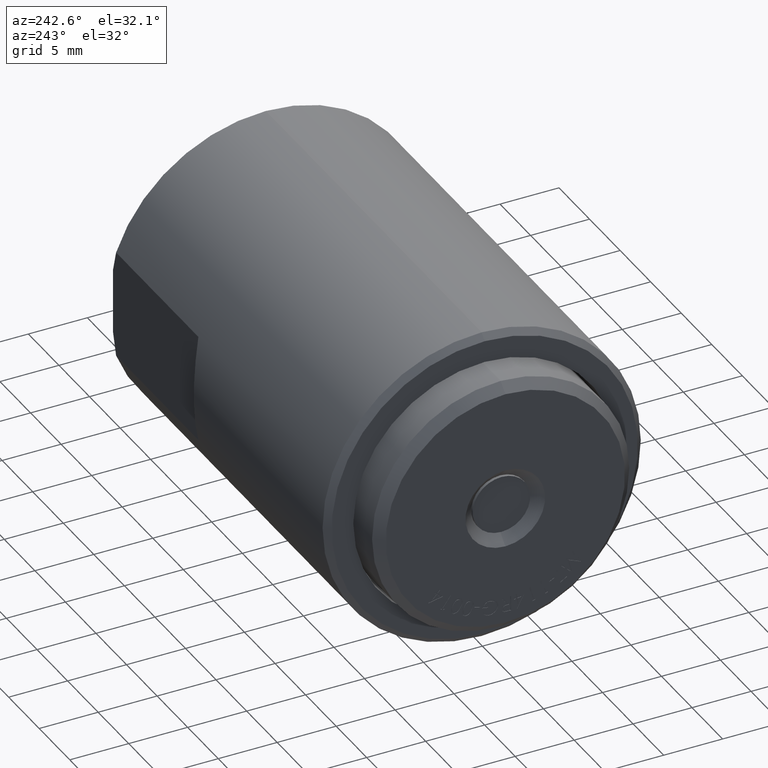
[diagram: clean part render]
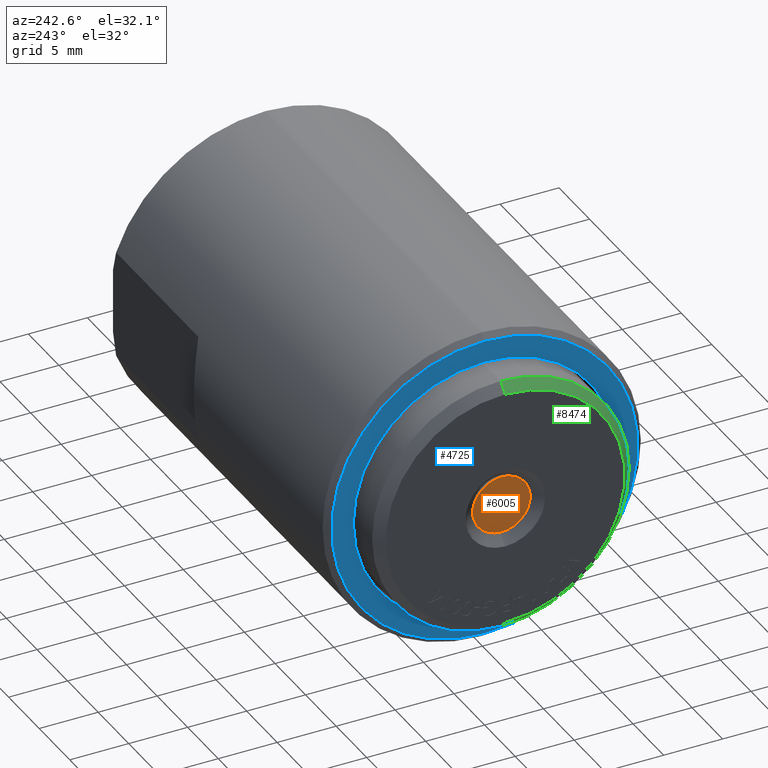
[diagram: same view with three faces highlighted in distinct colors, each labeled with its STEP entity id]
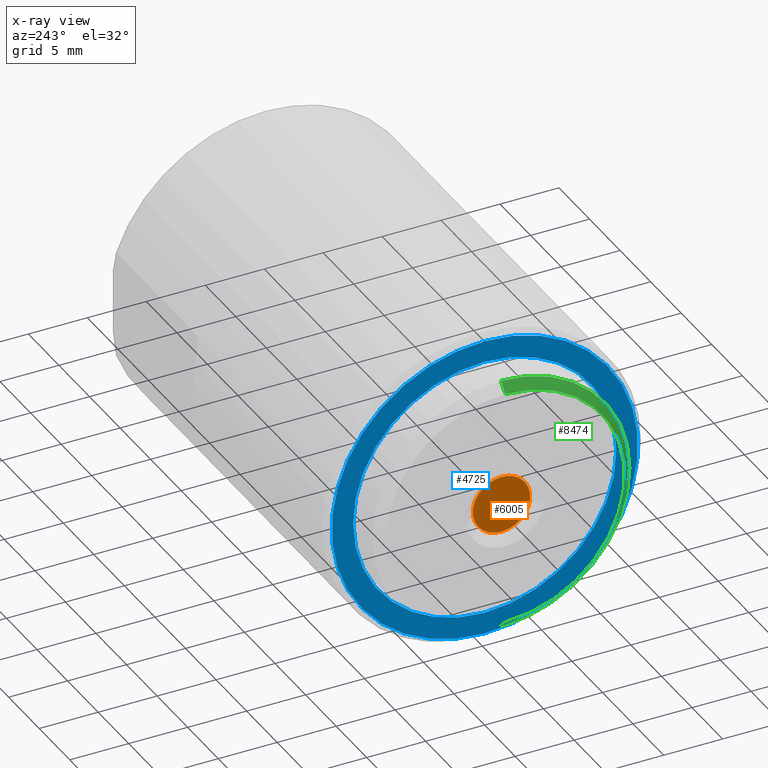
[diagram: x-ray of the same camera — body ghosted, the three highlighted faces saturated]
A machine part, auxiliary view with three faces highlighted in distinct colors.
The next image is the same camera in x-ray (body ghosted, the three faces saturated) — at least one of them is partly hidden behind the body in this view.
Their STEP definitions:

[orange] entity #6005 — the highlighted planar face has unit normal (1, 0, 0).
#8 = AXIS2_PLACEMENT_3D ( 'NONE', #4172, #1676, #10311 ) ;
#346 = CARTESIAN_POINT ( 'NONE',  ( -0.3190000000000000058, 0.09608246407405780787, 0.0000000000000000000 ) ) ;
#683 = EDGE_CURVE ( 'NONE', #9763, #10333, #6779, .T. ) ;
#775 = AXIS2_PLACEMENT_3D ( 'NONE', #346, #1334, #9269 ) ;
#1334 = DIRECTION ( 'NONE',  ( 1.000000000000000000, 0.0000000000000000000, 0.0000000000000000000 ) ) ;
#1440 = PLANE ( 'NONE',  #775 ) ;
#1676 = DIRECTION ( 'NONE',  ( -1.000000000000000000, -0.0000000000000000000, -0.0000000000000000000 ) ) ;
#1729 = ORIENTED_EDGE ( 'NONE', *, *, #683, .T. ) ;
#2410 = CARTESIAN_POINT ( 'NONE',  ( -0.3190000000000000058, 1.176670820824854605E-17, -0.09608246407405780787 ) ) ;
#4047 = FACE_OUTER_BOUND ( 'NONE', #6180, .T. ) ;
#4172 = CARTESIAN_POINT ( 'NONE',  ( -0.3190000000000000058, 0.0000000000000000000, 0.0000000000000000000 ) ) ;
#4819 = CIRCLE ( 'NONE', #8, 0.09608246407405780787 ) ;
#6005 = ADVANCED_FACE ( 'NONE', ( #4047 ), #1440, .F. ) ;
#6180 = EDGE_LOOP ( 'NONE', ( #8209, #1729 ) ) ;
#6779 = CIRCLE ( 'NONE', #7522, 0.09608246407405780787 ) ;
#7522 = AXIS2_PLACEMENT_3D ( 'NONE', #9471, #9352, #10271 ) ;
#8209 = ORIENTED_EDGE ( 'NONE', *, *, #8963, .T. ) ;
#8963 = EDGE_CURVE ( 'NONE', #10333, #9763, #4819, .T. ) ;
#9269 = DIRECTION ( 'NONE',  ( 0.0000000000000000000, 0.0000000000000000000, -1.000000000000000000 ) ) ;
#9352 = DIRECTION ( 'NONE',  ( -1.000000000000000000, -0.0000000000000000000, -0.0000000000000000000 ) ) ;
#9471 = CARTESIAN_POINT ( 'NONE',  ( -0.3190000000000000058, 0.0000000000000000000, 0.0000000000000000000 ) ) ;
#9763 = VERTEX_POINT ( 'NONE', #2410 ) ;
#10014 = CARTESIAN_POINT ( 'NONE',  ( -0.3190000000000000058, 0.0000000000000000000, 0.09608246407405780787 ) ) ;
#10271 = DIRECTION ( 'NONE',  ( 0.0000000000000000000, 0.0000000000000000000, 1.000000000000000000 ) ) ;
#10311 = DIRECTION ( 'NONE',  ( 0.0000000000000000000, 0.0000000000000000000, 1.000000000000000000 ) ) ;
#10333 = VERTEX_POINT ( 'NONE', #10014 ) ;

[blue] entity #4725 — the highlighted planar face has unit normal (-1, 0, -0).
#174 = CARTESIAN_POINT ( 'NONE',  ( -0.2114999999999999936, 0.0000000000000000000, 0.0000000000000000000 ) ) ;
#230 = PLANE ( 'NONE',  #7858 ) ;
#300 = AXIS2_PLACEMENT_3D ( 'NONE', #6241, #9767, #1823 ) ;
#358 = DIRECTION ( 'NONE',  ( 0.0000000000000000000, 0.0000000000000000000, 1.000000000000000000 ) ) ;
#362 = CARTESIAN_POINT ( 'NONE',  ( -0.2114999999999999936, 6.384083763955153047E-17, 0.5112999999999999767 ) ) ;
#787 = VERTEX_POINT ( 'NONE', #7496 ) ;
#859 = CIRCLE ( 'NONE', #1233, 0.5112999999999999767 ) ;
#935 = EDGE_CURVE ( 'NONE', #9203, #2222, #8264, .T. ) ;
#969 = EDGE_LOOP ( 'NONE', ( #2601, #8021 ) ) ;
#1040 = DIRECTION ( 'NONE',  ( -0.0000000000000000000, 0.0000000000000000000, 1.000000000000000000 ) ) ;
#1233 = AXIS2_PLACEMENT_3D ( 'NONE', #8673, #8836, #4424 ) ;
#1689 = CIRCLE ( 'NONE', #3536, 0.4389999999999998903 ) ;
#1823 = DIRECTION ( 'NONE',  ( 0.0000000000000000000, 0.0000000000000000000, 1.000000000000000000 ) ) ;
#1963 = FACE_OUTER_BOUND ( 'NONE', #969, .T. ) ;
#2207 = CARTESIAN_POINT ( 'NONE',  ( -0.2114999999999999936, 0.0000000000000000000, 0.0000000000000000000 ) ) ;
#2222 = VERTEX_POINT ( 'NONE', #7912 ) ;
#2233 = EDGE_CURVE ( 'NONE', #9974, #787, #859, .T. ) ;
#2247 = CARTESIAN_POINT ( 'NONE',  ( -0.2114999999999999936, 5.376199448256879768E-17, -0.4389999999999998903 ) ) ;
#2601 = ORIENTED_EDGE ( 'NONE', *, *, #4568, .T. ) ;
#3080 = DIRECTION ( 'NONE',  ( -1.000000000000000000, -0.0000000000000000000, -0.0000000000000000000 ) ) ;
#3275 = ORIENTED_EDGE ( 'NONE', *, *, #935, .F. ) ;
#3536 = AXIS2_PLACEMENT_3D ( 'NONE', #2207, #4120, #358 ) ;
#4120 = DIRECTION ( 'NONE',  ( -1.000000000000000000, -0.0000000000000000000, -0.0000000000000000000 ) ) ;
#4424 = DIRECTION ( 'NONE',  ( 0.0000000000000000000, 0.0000000000000000000, 1.000000000000000000 ) ) ;
#4546 = ORIENTED_EDGE ( 'NONE', *, *, #5566, .F. ) ;
#4568 = EDGE_CURVE ( 'NONE', #787, #9974, #6383, .T. ) ;
#4725 = ADVANCED_FACE ( 'NONE', ( #1963, #6206 ), #230, .T. ) ;
#5566 = EDGE_CURVE ( 'NONE', #2222, #9203, #1689, .T. ) ;
#6069 = EDGE_LOOP ( 'NONE', ( #4546, #3275 ) ) ;
#6206 = FACE_BOUND ( 'NONE', #6069, .T. ) ;
#6241 = CARTESIAN_POINT ( 'NONE',  ( -0.2114999999999999936, 0.0000000000000000000, 0.0000000000000000000 ) ) ;
#6383 = CIRCLE ( 'NONE', #6563, 0.5112999999999999767 ) ;
#6435 = DIRECTION ( 'NONE',  ( -1.000000000000000000, 0.0000000000000000000, -0.0000000000000000000 ) ) ;
#6563 = AXIS2_PLACEMENT_3D ( 'NONE', #7543, #3080, #7369 ) ;
#7369 = DIRECTION ( 'NONE',  ( 0.0000000000000000000, 0.0000000000000000000, 1.000000000000000000 ) ) ;
#7496 = CARTESIAN_POINT ( 'NONE',  ( -0.2114999999999999936, 0.0000000000000000000, -0.5112999999999999767 ) ) ;
#7543 = CARTESIAN_POINT ( 'NONE',  ( -0.2114999999999999936, 0.0000000000000000000, 0.0000000000000000000 ) ) ;
#7858 = AXIS2_PLACEMENT_3D ( 'NONE', #174, #6435, #1040 ) ;
#7912 = CARTESIAN_POINT ( 'NONE',  ( -0.2114999999999999936, 0.0000000000000000000, 0.4389999999999998903 ) ) ;
#8021 = ORIENTED_EDGE ( 'NONE', *, *, #2233, .T. ) ;
#8264 = CIRCLE ( 'NONE', #300, 0.4389999999999998903 ) ;
#8673 = CARTESIAN_POINT ( 'NONE',  ( -0.2114999999999999936, 0.0000000000000000000, 0.0000000000000000000 ) ) ;
#8836 = DIRECTION ( 'NONE',  ( -1.000000000000000000, -0.0000000000000000000, -0.0000000000000000000 ) ) ;
#9203 = VERTEX_POINT ( 'NONE', #2247 ) ;
#9767 = DIRECTION ( 'NONE',  ( -1.000000000000000000, -0.0000000000000000000, -0.0000000000000000000 ) ) ;
#9974 = VERTEX_POINT ( 'NONE', #362 ) ;

[green] entity #8474 — the highlighted conical surface has half-angle 45 deg.
#33 = ORIENTED_EDGE ( 'NONE', *, *, #1097, .T. ) ;
#225 = VECTOR ( 'NONE', #1348, 39.37007874015748143 ) ;
#227 = VERTEX_POINT ( 'NONE', #5548 ) ;
#365 = CONICAL_SURFACE ( 'NONE', #546, 0.4294999999999999374, 0.7853981633974471688 ) ;
#546 = AXIS2_PLACEMENT_3D ( 'NONE', #6410, #7334, #4939 ) ;
#980 = DIRECTION ( 'NONE',  ( -1.000000000000000000, -0.0000000000000000000, -0.0000000000000000000 ) ) ;
#1097 = EDGE_CURVE ( 'NONE', #9172, #11244, #1363, .T. ) ;
#1303 = ORIENTED_EDGE ( 'NONE', *, *, #5086, .T. ) ;
#1315 = VERTEX_POINT ( 'NONE', #11133 ) ;
#1348 = DIRECTION ( 'NONE',  ( 0.7071067811865483499, 8.659560562354922997E-17, 0.7071067811865466846 ) ) ;
#1363 = LINE ( 'NONE', #3279, #9006 ) ;
#1457 = FACE_OUTER_BOUND ( 'NONE', #3563, .T. ) ;
#1460 = LINE ( 'NONE', #5704, #225 ) ;
#2372 = DIRECTION ( 'NONE',  ( -1.000000000000000000, -0.0000000000000000000, -0.0000000000000000000 ) ) ;
#3266 = CIRCLE ( 'NONE', #6422, 0.4294999999999999374 ) ;
#3279 = CARTESIAN_POINT ( 'NONE',  ( -0.3140000000000000013, 0.0000000000000000000, -0.4294999999999999374 ) ) ;
#3480 = CARTESIAN_POINT ( 'NONE',  ( -0.3440000000000000280, 0.0000000000000000000, 0.0000000000000000000 ) ) ;
#3563 = EDGE_LOOP ( 'NONE', ( #6231, #8341, #33, #1303 ) ) ;
#4683 = CARTESIAN_POINT ( 'NONE',  ( -0.3440000000000000280, 0.0000000000000000000, -0.3995000000000000218 ) ) ;
#4898 = DIRECTION ( 'NONE',  ( 0.7071067811865483499, 0.0000000000000000000, -0.7071067811865466846 ) ) ;
#4939 = DIRECTION ( 'NONE',  ( 0.0000000000000000000, 0.0000000000000000000, -1.000000000000000000 ) ) ;
#5086 = EDGE_CURVE ( 'NONE', #11244, #1315, #3266, .T. ) ;
#5093 = DIRECTION ( 'NONE',  ( 0.0000000000000000000, 0.0000000000000000000, 1.000000000000000000 ) ) ;
#5548 = CARTESIAN_POINT ( 'NONE',  ( -0.3440000000000000280, 5.076160982465778897E-17, 0.3995000000000000218 ) ) ;
#5704 = CARTESIAN_POINT ( 'NONE',  ( -0.3140000000000000013, 5.259858002337881471E-17, 0.4294999999999999374 ) ) ;
#5714 = EDGE_CURVE ( 'NONE', #9172, #227, #8910, .T. ) ;
#6231 = ORIENTED_EDGE ( 'NONE', *, *, #11414, .F. ) ;
#6263 = DIRECTION ( 'NONE',  ( 0.0000000000000000000, 0.0000000000000000000, 1.000000000000000000 ) ) ;
#6410 = CARTESIAN_POINT ( 'NONE',  ( -0.3140000000000000013, 0.0000000000000000000, 0.0000000000000000000 ) ) ;
#6422 = AXIS2_PLACEMENT_3D ( 'NONE', #10299, #2372, #5093 ) ;
#7334 = DIRECTION ( 'NONE',  ( 1.000000000000000000, 0.0000000000000000000, 0.0000000000000000000 ) ) ;
#8341 = ORIENTED_EDGE ( 'NONE', *, *, #5714, .F. ) ;
#8474 = ADVANCED_FACE ( 'NONE', ( #1457 ), #365, .T. ) ;
#8910 = CIRCLE ( 'NONE', #9645, 0.3995000000000000218 ) ;
#9006 = VECTOR ( 'NONE', #4898, 39.37007874015748143 ) ;
#9172 = VERTEX_POINT ( 'NONE', #4683 ) ;
#9645 = AXIS2_PLACEMENT_3D ( 'NONE', #3480, #980, #6263 ) ;
#10299 = CARTESIAN_POINT ( 'NONE',  ( -0.3140000000000000013, 0.0000000000000000000, 0.0000000000000000000 ) ) ;
#10561 = CARTESIAN_POINT ( 'NONE',  ( -0.3140000000000000013, 5.259858002337881471E-17, -0.4294999999999999374 ) ) ;
#11133 = CARTESIAN_POINT ( 'NONE',  ( -0.3140000000000000013, 0.0000000000000000000, 0.4294999999999999374 ) ) ;
#11244 = VERTEX_POINT ( 'NONE', #10561 ) ;
#11414 = EDGE_CURVE ( 'NONE', #227, #1315, #1460, .T. ) ;